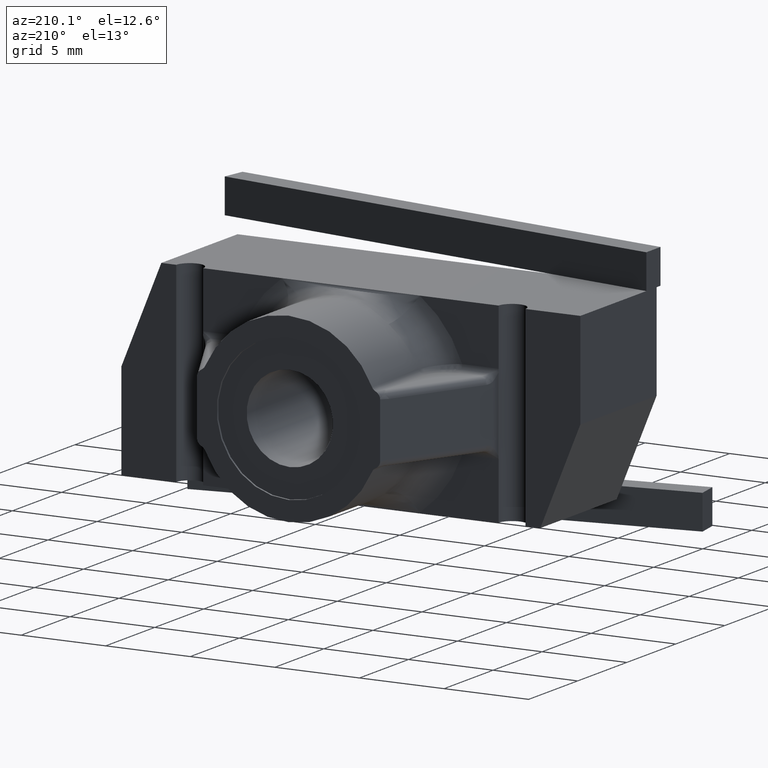
[diagram: clean part render]
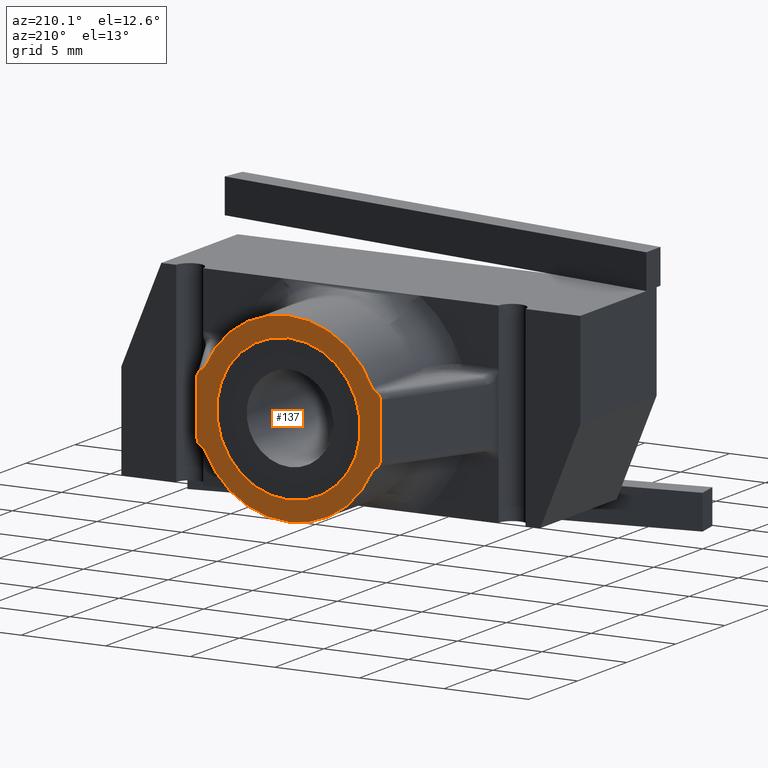
[diagram: same view with one face highlighted and labeled with its STEP entity id]
A machine part, auxiliary view. The second image highlights one B-rep face of the part: STEP entity #137.
In plain terms, the highlighted planar face has unit normal (0, 1, 0).
Its self-contained STEP definition (entity closure, byte-faithful):
#9 = FACE_BOUND ( 'NONE', #3558, .T. ) ;
#15 = FACE_OUTER_BOUND ( 'NONE', #3546, .T. ) ;
#51 = LINE ( 'NONE', #4141, #52 ) ;
#52 = VECTOR ( 'NONE', #4147, 39.37007874015748100 ) ;
#54 = CIRCLE ( 'NONE', #3194, 0.1671852043399458300 ) ;
#137 = ADVANCED_FACE ( 'NONE', ( #9, #15 ), #4062, .T. ) ;
#190 = ORIENTED_EDGE ( 'NONE', *, *, #2791, .T. ) ;
#191 = ORIENTED_EDGE ( 'NONE', *, *, #2782, .T. ) ;
#192 = ORIENTED_EDGE ( 'NONE', *, *, #2892, .T. ) ;
#193 = ORIENTED_EDGE ( 'NONE', *, *, #2908, .T. ) ;
#194 = ORIENTED_EDGE ( 'NONE', *, *, #2793, .T. ) ;
#195 = ORIENTED_EDGE ( 'NONE', *, *, #3764, .T. ) ;
#196 = ORIENTED_EDGE ( 'NONE', *, *, #2767, .T. ) ;
#197 = ORIENTED_EDGE ( 'NONE', *, *, #2763, .T. ) ;
#198 = ORIENTED_EDGE ( 'NONE', *, *, #3765, .T. ) ;
#199 = ORIENTED_EDGE ( 'NONE', *, *, #3116, .T. ) ;
#200 = ORIENTED_EDGE ( 'NONE', *, *, #2788, .T. ) ;
#201 = ORIENTED_EDGE ( 'NONE', *, *, #758, .T. ) ;
#202 = ORIENTED_EDGE ( 'NONE', *, *, #759, .F. ) ;
#203 = ORIENTED_EDGE ( 'NONE', *, *, #2894, .F. ) ;
#204 = ORIENTED_EDGE ( 'NONE', *, *, #760, .F. ) ;
#323 = CARTESIAN_POINT ( 'NONE',  ( 0.2129999999999999900, 0.2500000000000000000, -0.06397733888881325400 ) ) ;
#336 = CARTESIAN_POINT ( 'NONE',  ( 0.2129999999999999900, 0.2500000000000000000, -0.06735940863378726800 ) ) ;
#337 = CARTESIAN_POINT ( 'NONE',  ( 0.2117956502597549400, 0.2500000000000000600, -0.07060826361167152300 ) ) ;
#338 = CARTESIAN_POINT ( 'NONE',  ( 0.2078026120294014200, 0.2499999999999999200, -0.07602597708442322700 ) ) ;
#339 = CARTESIAN_POINT ( 'NONE',  ( 0.2050914774986586900, 0.2500000000000000600, -0.07813728686619707300 ) ) ;
#340 = CARTESIAN_POINT ( 'NONE',  ( 0.2020250450141628800, 0.2500000000000000000, -0.07953858368571989400 ) ) ;
#341 = CARTESIAN_POINT ( 'NONE',  ( 0.2085193711025428700, 0.2500000000000000000, 0.09375000000000001400 ) ) ;
#342 = DIRECTION ( 'NONE',  ( -0.0000000000000000000, -1.000000000000000000, -0.0000000000000000000 ) ) ;
#343 = DIRECTION ( 'NONE',  ( 0.0000000000000000000, 0.0000000000000000000, 1.000000000000000000 ) ) ;
#758 = EDGE_CURVE ( 'NONE', #2151, #2149, #2339, .T. ) ;
#759 = EDGE_CURVE ( 'NONE', #2151, #2150, #51, .T. ) ;
#760 = EDGE_CURVE ( 'NONE', #2096, #2104, #54, .T. ) ;
#786 = CARTESIAN_POINT ( 'NONE',  ( 0.0000000000000000000, 0.2500000000000000000, 0.0000000000000000000 ) ) ;
#788 = DIRECTION ( 'NONE',  ( 0.0000000000000000000, 1.000000000000000000, 0.0000000000000000000 ) ) ;
#789 = DIRECTION ( 'NONE',  ( 0.0000000000000000000, 0.0000000000000000000, 1.000000000000000000 ) ) ;
#1007 = CARTESIAN_POINT ( 'NONE',  ( 0.0000000000000000000, 0.2500000000000000000, 0.0000000000000000000 ) ) ;
#1019 = CARTESIAN_POINT ( 'NONE',  ( 0.0000000000000000000, 0.2500000000000000000, 0.0000000000000000000 ) ) ;
#1020 = DIRECTION ( 'NONE',  ( 0.0000000000000000000, 1.000000000000000000, 0.0000000000000000000 ) ) ;
#1021 = DIRECTION ( 'NONE',  ( 0.0000000000000000000, 0.0000000000000000000, 1.000000000000000000 ) ) ;
#1022 = DIRECTION ( 'NONE',  ( 0.0000000000000000000, 1.000000000000000000, 0.0000000000000000000 ) ) ;
#1023 = DIRECTION ( 'NONE',  ( 0.0000000000000000000, 0.0000000000000000000, 1.000000000000000000 ) ) ;
#1049 = CARTESIAN_POINT ( 'NONE',  ( 0.0000000000000000000, 0.2500000000000000000, 0.0000000000000000000 ) ) ;
#1050 = DIRECTION ( 'NONE',  ( 0.0000000000000000000, 1.000000000000000000, 0.0000000000000000000 ) ) ;
#1051 = DIRECTION ( 'NONE',  ( 0.0000000000000000000, 0.0000000000000000000, 1.000000000000000000 ) ) ;
#1058 = CARTESIAN_POINT ( 'NONE',  ( 0.1942684572765079600, 0.2500000000000000000, 0.08734281027884090200 ) ) ;
#1065 = CARTESIAN_POINT ( 'NONE',  ( 0.1942684572765079600, 0.2500000000000000000, -0.08734281027884090200 ) ) ;
#1077 = CARTESIAN_POINT ( 'NONE',  ( -0.1942684572765079600, 0.2500000000000000000, 0.08734281027884090200 ) ) ;
#1155 = CIRCLE ( 'NONE', #1252, 0.2129999999999999900 ) ;
#1156 = CIRCLE ( 'NONE', #1254, 0.1671852043399458300 ) ;
#1164 = CIRCLE ( 'NONE', #1259, 0.2129999999999999900 ) ;
#1187 = CIRCLE ( 'NONE', #1264, 0.2129999999999999900 ) ;
#1245 = AXIS2_PLACEMENT_3D ( 'NONE', #2279, #2293, #2294 ) ;
#1249 = AXIS2_PLACEMENT_3D ( 'NONE', #2310, #2311, #2312 ) ;
#1252 = AXIS2_PLACEMENT_3D ( 'NONE', #1019, #1020, #1021 ) ;
#1254 = AXIS2_PLACEMENT_3D ( 'NONE', #1007, #1022, #1023 ) ;
#1259 = AXIS2_PLACEMENT_3D ( 'NONE', #1049, #1050, #1051 ) ;
#1264 = AXIS2_PLACEMENT_3D ( 'NONE', #786, #788, #789 ) ;
#1279 = AXIS2_PLACEMENT_3D ( 'NONE', #341, #342, #343 ) ;
#1301 = LINE ( 'NONE', #2196, #1302 ) ;
#1302 = VECTOR ( 'NONE', #2197, 39.37007874015748100 ) ;
#1323 = CIRCLE ( 'NONE', #2809, 0.01562500000000000300 ) ;
#1329 = CIRCLE ( 'NONE', #1245, 0.01562500000000000300 ) ;
#1333 = CIRCLE ( 'NONE', #1249, 0.01562500000000000300 ) ;
#2096 = VERTEX_POINT ( 'NONE', #3635 ) ;
#2104 = VERTEX_POINT ( 'NONE', #3650 ) ;
#2119 = VERTEX_POINT ( 'NONE', #3664 ) ;
#2146 = VERTEX_POINT ( 'NONE', #3688 ) ;
#2149 = VERTEX_POINT ( 'NONE', #3691 ) ;
#2150 = VERTEX_POINT ( 'NONE', #3692 ) ;
#2151 = VERTEX_POINT ( 'NONE', #3693 ) ;
#2155 = VERTEX_POINT ( 'NONE', #3697 ) ;
#2158 = VERTEX_POINT ( 'NONE', #3700 ) ;
#2159 = VERTEX_POINT ( 'NONE', #3701 ) ;
#2169 = VERTEX_POINT ( 'NONE', #3711 ) ;
#2178 = VERTEX_POINT ( 'NONE', #3720 ) ;
#2185 = CARTESIAN_POINT ( 'NONE',  ( 0.2051035808616143200, 0.2500000000000000000, 0.07813175587728908600 ) ) ;
#2186 = CARTESIAN_POINT ( 'NONE',  ( 0.2078005232082614000, 0.2500000000000000600, 0.07602126714590476400 ) ) ;
#2187 = CARTESIAN_POINT ( 'NONE',  ( 0.2117692381290510700, 0.2499999999999999200, 0.07065158931338548500 ) ) ;
#2188 = CARTESIAN_POINT ( 'NONE',  ( 0.2129999999999999700, 0.2500000000000000600, 0.06737913992449562400 ) ) ;
#2189 = CARTESIAN_POINT ( 'NONE',  ( 0.2129999999999999900, 0.2500000000000000000, 0.06397733888881324000 ) ) ;
#2196 = CARTESIAN_POINT ( 'NONE',  ( 0.2129999999999999900, 0.2500000000000000000, 0.07812500000000000000 ) ) ;
#2197 = DIRECTION ( 'NONE',  ( -0.0000000000000000000, -0.0000000000000000000, -1.000000000000000000 ) ) ;
#2253 = CARTESIAN_POINT ( 'NONE',  ( -0.2085193711025428700, 0.2500000000000000000, -0.09375000000000001400 ) ) ;
#2255 = DIRECTION ( 'NONE',  ( -0.0000000000000000000, -1.000000000000000000, -0.0000000000000000000 ) ) ;
#2256 = DIRECTION ( 'NONE',  ( 0.0000000000000000000, 0.0000000000000000000, 1.000000000000000000 ) ) ;
#2279 = CARTESIAN_POINT ( 'NONE',  ( -0.2085193711025428700, 0.2500000000000000000, 0.09375000000000001400 ) ) ;
#2293 = DIRECTION ( 'NONE',  ( -0.0000000000000000000, -1.000000000000000000, -0.0000000000000000000 ) ) ;
#2294 = DIRECTION ( 'NONE',  ( 0.0000000000000000000, 0.0000000000000000000, 1.000000000000000000 ) ) ;
#2295 = CARTESIAN_POINT ( 'NONE',  ( -0.2020250450141628800, 0.2500000000000000000, -0.07953858368571989400 ) ) ;
#2301 = CARTESIAN_POINT ( 'NONE',  ( -0.2051035808616143200, 0.2500000000000000000, -0.07813175587728904400 ) ) ;
#2302 = CARTESIAN_POINT ( 'NONE',  ( -0.2078005232082614000, 0.2500000000000000600, -0.07602126714590477800 ) ) ;
#2303 = CARTESIAN_POINT ( 'NONE',  ( -0.2117692381290510700, 0.2499999999999999200, -0.07065158931338549900 ) ) ;
#2304 = CARTESIAN_POINT ( 'NONE',  ( -0.2129999999999999700, 0.2500000000000000600, -0.06737913992449562400 ) ) ;
#2305 = CARTESIAN_POINT ( 'NONE',  ( -0.2129999999999999900, 0.2500000000000000000, -0.06397733888881325400 ) ) ;
#2310 = CARTESIAN_POINT ( 'NONE',  ( 0.2085193711025428700, 0.2500000000000000000, -0.09375000000000001400 ) ) ;
#2311 = DIRECTION ( 'NONE',  ( -0.0000000000000000000, -1.000000000000000000, -0.0000000000000000000 ) ) ;
#2312 = DIRECTION ( 'NONE',  ( 0.0000000000000000000, 0.0000000000000000000, 1.000000000000000000 ) ) ;
#2339 = B_SPLINE_CURVE_WITH_KNOTS ( 'NONE', 3,
 ( #4138, #4142, #4143, #4144, #4145, #4146 ),
 .UNSPECIFIED., .F., .F.,
 ( 4, 2, 4 ),
 ( 0.0000000000000000000, 0.0002536626935288818200, 0.0005073253870577636500 ),
 .UNSPECIFIED. ) ;
#2763 = EDGE_CURVE ( 'NONE', #2158, #2159, #2857, .T. ) ;
#2767 = EDGE_CURVE ( 'NONE', #2159, #2119, #1301, .T. ) ;
#2782 = EDGE_CURVE ( 'NONE', #2169, #2155, #1323, .T. ) ;
#2788 = EDGE_CURVE ( 'NONE', #2149, #2962, #1329, .T. ) ;
#2791 = EDGE_CURVE ( 'NONE', #2155, #2150, #2846, .T. ) ;
#2793 = EDGE_CURVE ( 'NONE', #2146, #2961, #1333, .T. ) ;
#2809 = AXIS2_PLACEMENT_3D ( 'NONE', #2253, #2255, #2256 ) ;
#2839 = B_SPLINE_CURVE_WITH_KNOTS ( 'NONE', 3,
 ( #323, #336, #337, #338, #339, #340 ),
 .UNSPECIFIED., .F., .F.,
 ( 4, 2, 4 ),
 ( 2.168404344971008900E-019, 0.0002536626935288820400, 0.0005073253870577638600 ),
 .UNSPECIFIED. ) ;
#2846 = B_SPLINE_CURVE_WITH_KNOTS ( 'NONE', 3,
 ( #2295, #2301, #2302, #2303, #2304, #2305 ),
 .UNSPECIFIED., .F., .F.,
 ( 4, 2, 4 ),
 ( 0.0000000000000000000, 0.0002530819964967525700, 0.0005061639929935051400 ),
 .UNSPECIFIED. ) ;
#2857 = B_SPLINE_CURVE_WITH_KNOTS ( 'NONE', 3,
 ( #3739, #2185, #2186, #2187, #2188, #2189 ),
 .UNSPECIFIED., .F., .F.,
 ( 4, 2, 4 ),
 ( 0.0000000000000000000, 0.0002530819964967525700, 0.0005061639929935051400 ),
 .UNSPECIFIED. ) ;
#2892 = EDGE_CURVE ( 'NONE', #2178, #2169, #1155, .T. ) ;
#2894 = EDGE_CURVE ( 'NONE', #2104, #2096, #1156, .T. ) ;
#2908 = EDGE_CURVE ( 'NONE', #2961, #2178, #1164, .T. ) ;
#2961 = VERTEX_POINT ( 'NONE', #1065 ) ;
#2962 = VERTEX_POINT ( 'NONE', #1077 ) ;
#2987 = VERTEX_POINT ( 'NONE', #1058 ) ;
#3116 = EDGE_CURVE ( 'NONE', #2962, #2987, #1187, .T. ) ;
#3186 = AXIS2_PLACEMENT_3D ( 'NONE', #4064, #4069, #4070 ) ;
#3194 = AXIS2_PLACEMENT_3D ( 'NONE', #4137, #4149, #3585 ) ;
#3259 = CIRCLE ( 'NONE', #1279, 0.01562500000000000300 ) ;
#3546 = EDGE_LOOP ( 'NONE', ( #202, #201, #200, #199, #198, #197, #196, #195, #194, #193, #192, #191, #190 ) ) ;
#3558 = EDGE_LOOP ( 'NONE', ( #204, #203 ) ) ;
#3585 = DIRECTION ( 'NONE',  ( 0.0000000000000000000, 0.0000000000000000000, 1.000000000000000000 ) ) ;
#3635 = CARTESIAN_POINT ( 'NONE',  ( 0.0000000000000000000, 0.2500000000000000000, 0.1671852043399458300 ) ) ;
#3650 = CARTESIAN_POINT ( 'NONE',  ( 2.047428253597108600E-017, 0.2500000000000000000, -0.1671852043399458300 ) ) ;
#3664 = CARTESIAN_POINT ( 'NONE',  ( 0.2129999999999999900, 0.2500000000000000000, -0.06397733888881325400 ) ) ;
#3688 = CARTESIAN_POINT ( 'NONE',  ( 0.2020250450141628800, 0.2500000000000000000, -0.07953858368571989400 ) ) ;
#3691 = CARTESIAN_POINT ( 'NONE',  ( -0.2020250450141628800, 0.2500000000000000000, 0.07953858368571989400 ) ) ;
#3692 = CARTESIAN_POINT ( 'NONE',  ( -0.2129999999999999900, 0.2500000000000000000, -0.06397733888881325400 ) ) ;
#3693 = CARTESIAN_POINT ( 'NONE',  ( -0.2129999999999999900, 0.2500000000000000000, 0.06397733888881324000 ) ) ;
#3697 = CARTESIAN_POINT ( 'NONE',  ( -0.2020250450141628800, 0.2500000000000000000, -0.07953858368571989400 ) ) ;
#3700 = CARTESIAN_POINT ( 'NONE',  ( 0.2020250450141628800, 0.2500000000000000000, 0.07953858368571989400 ) ) ;
#3701 = CARTESIAN_POINT ( 'NONE',  ( 0.2129999999999999900, 0.2500000000000000000, 0.06397733888881324000 ) ) ;
#3711 = CARTESIAN_POINT ( 'NONE',  ( -0.1942684572765079600, 0.2500000000000000000, -0.08734281027884090200 ) ) ;
#3720 = CARTESIAN_POINT ( 'NONE',  ( 0.0000000000000000000, 0.2500000000000000000, -0.2129999999999999900 ) ) ;
#3739 = CARTESIAN_POINT ( 'NONE',  ( 0.2020250450141628800, 0.2500000000000000000, 0.07953858368571989400 ) ) ;
#3764 = EDGE_CURVE ( 'NONE', #2119, #2146, #2839, .T. ) ;
#3765 = EDGE_CURVE ( 'NONE', #2987, #2158, #3259, .T. ) ;
#4062 = PLANE ( 'NONE',  #3186 ) ;
#4064 = CARTESIAN_POINT ( 'NONE',  ( 0.0000000000000000000, 0.2500000000000000000, 0.0000000000000000000 ) ) ;
#4069 = DIRECTION ( 'NONE',  ( 0.0000000000000000000, 1.000000000000000000, 0.0000000000000000000 ) ) ;
#4070 = DIRECTION ( 'NONE',  ( 0.0000000000000000000, -0.0000000000000000000, 1.000000000000000000 ) ) ;
#4137 = CARTESIAN_POINT ( 'NONE',  ( 0.0000000000000000000, 0.2500000000000000000, 0.0000000000000000000 ) ) ;
#4138 = CARTESIAN_POINT ( 'NONE',  ( -0.2129999999999999900, 0.2500000000000000000, 0.06397733888881324000 ) ) ;
#4141 = CARTESIAN_POINT ( 'NONE',  ( -0.2129999999999999900, 0.2500000000000000000, 0.07812500000000000000 ) ) ;
#4142 = CARTESIAN_POINT ( 'NONE',  ( -0.2129999999999999900, 0.2500000000000000000, 0.06735940863378726800 ) ) ;
#4143 = CARTESIAN_POINT ( 'NONE',  ( -0.2117956502597550300, 0.2500000000000000600, 0.07060826361167156500 ) ) ;
#4144 = CARTESIAN_POINT ( 'NONE',  ( -0.2078026120294013400, 0.2499999999999999200, 0.07602597708442325500 ) ) ;
#4145 = CARTESIAN_POINT ( 'NONE',  ( -0.2050914774986587200, 0.2500000000000000600, 0.07813728686619705900 ) ) ;
#4146 = CARTESIAN_POINT ( 'NONE',  ( -0.2020250450141628800, 0.2500000000000000000, 0.07953858368571989400 ) ) ;
#4147 = DIRECTION ( 'NONE',  ( -0.0000000000000000000, -0.0000000000000000000, -1.000000000000000000 ) ) ;
#4149 = DIRECTION ( 'NONE',  ( 0.0000000000000000000, 1.000000000000000000, 0.0000000000000000000 ) ) ;